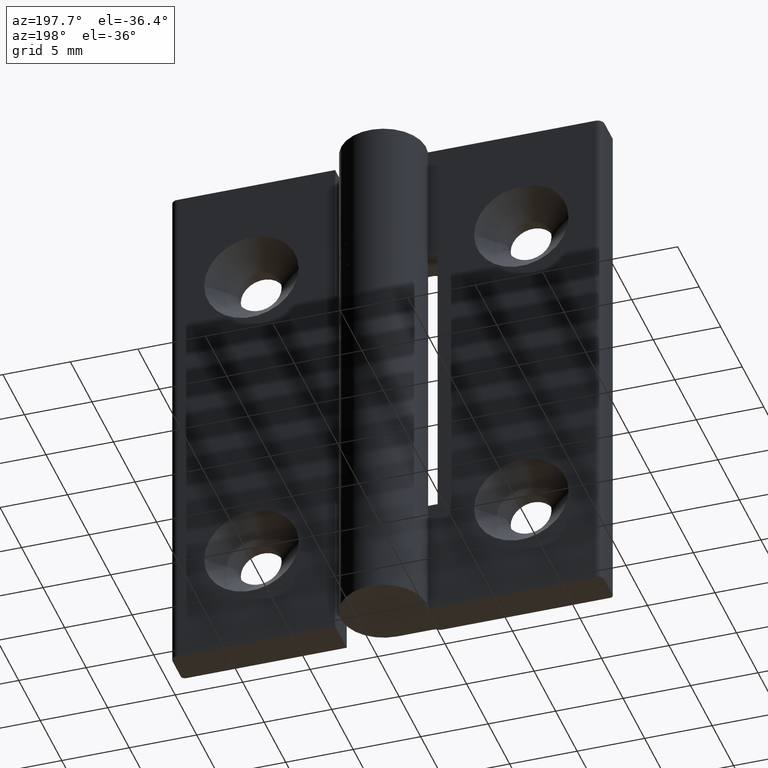
[diagram: clean part render]
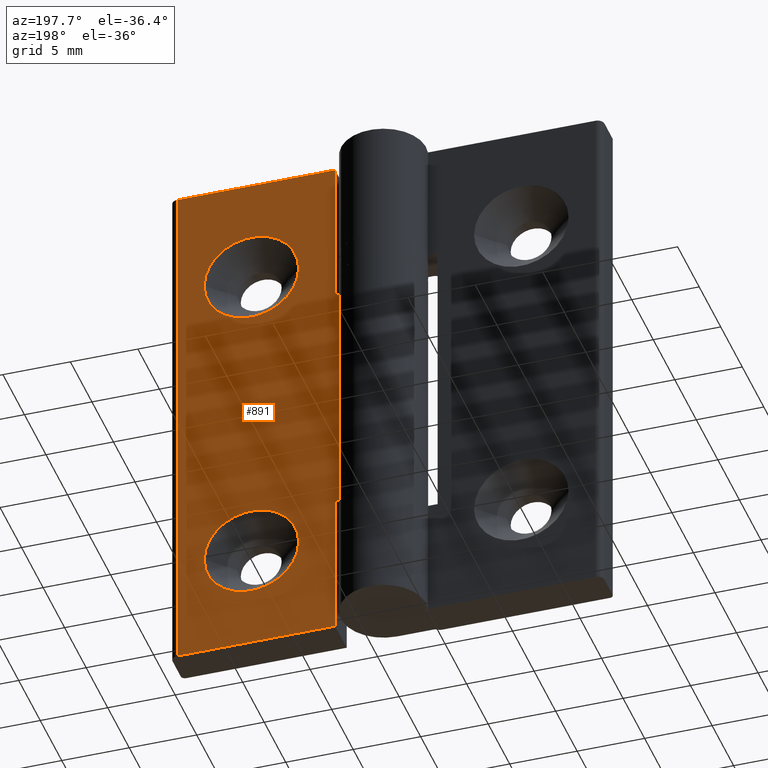
[diagram: same view with one face highlighted and labeled with its STEP entity id]
A machine part, auxiliary view. The second image highlights one B-rep face of the part: STEP entity #891.
In plain terms, the highlighted planar face has unit normal (0, 1, 0).
Its self-contained STEP definition (entity closure, byte-faithful):
#97=FACE_BOUND('',#273,.T.);
#98=FACE_BOUND('',#274,.T.);
#150=CIRCLE('',#997,3.5);
#151=CIRCLE('',#998,3.5);
#198=FACE_OUTER_BOUND('',#272,.T.);
#272=EDGE_LOOP('',(#799,#800,#801,#802,#803,#804,#805,#806));
#273=EDGE_LOOP('',(#807));
#274=EDGE_LOOP('',(#808));
#318=LINE('',#1446,#379);
#322=LINE('',#1462,#383);
#325=LINE('',#1469,#386);
#329=LINE('',#1477,#390);
#340=LINE('',#1513,#401);
#344=LINE('',#1524,#405);
#345=LINE('',#1527,#406);
#346=LINE('',#1529,#407);
#379=VECTOR('',#1181,0.717792998515512);
#383=VECTOR('',#1195,11.);
#386=VECTOR('',#1200,11.);
#390=VECTOR('',#1206,0.717792998515512);
#401=VECTOR('',#1243,11.7);
#405=VECTOR('',#1255,11.7);
#406=VECTOR('',#1260,40.);
#407=VECTOR('',#1263,18.);
#456=VERTEX_POINT('',#1444);
#457=VERTEX_POINT('',#1445);
#464=VERTEX_POINT('',#1461);
#466=VERTEX_POINT('',#1467);
#467=VERTEX_POINT('',#1468);
#470=VERTEX_POINT('',#1476);
#482=VERTEX_POINT('',#1511);
#485=VERTEX_POINT('',#1523);
#486=VERTEX_POINT('',#1530);
#487=VERTEX_POINT('',#1532);
#554=EDGE_CURVE('',#456,#457,#318,.T.);
#562=EDGE_CURVE('',#464,#456,#322,.T.);
#565=EDGE_CURVE('',#466,#467,#325,.T.);
#569=EDGE_CURVE('',#470,#466,#329,.T.);
#588=EDGE_CURVE('',#467,#482,#340,.T.);
#593=EDGE_CURVE('',#464,#485,#344,.T.);
#595=EDGE_CURVE('',#485,#482,#345,.T.);
#596=EDGE_CURVE('',#470,#457,#346,.T.);
#597=EDGE_CURVE('',#486,#486,#150,.T.);
#598=EDGE_CURVE('',#487,#487,#151,.T.);
#799=ORIENTED_EDGE('',*,*,#554,.T.);
#800=ORIENTED_EDGE('',*,*,#596,.F.);
#801=ORIENTED_EDGE('',*,*,#569,.T.);
#802=ORIENTED_EDGE('',*,*,#565,.T.);
#803=ORIENTED_EDGE('',*,*,#588,.T.);
#804=ORIENTED_EDGE('',*,*,#595,.F.);
#805=ORIENTED_EDGE('',*,*,#593,.F.);
#806=ORIENTED_EDGE('',*,*,#562,.T.);
#807=ORIENTED_EDGE('',*,*,#597,.T.);
#808=ORIENTED_EDGE('',*,*,#598,.T.);
#846=PLANE('',#996);
#891=ADVANCED_FACE('',(#198,#97,#98),#846,.T.);
#996=AXIS2_PLACEMENT_3D('',#1528,#1261,#1262);
#997=AXIS2_PLACEMENT_3D('',#1531,#1264,#1265);
#998=AXIS2_PLACEMENT_3D('',#1533,#1266,#1267);
#1181=DIRECTION('',(-1.,0.,0.));
#1195=DIRECTION('',(5.04646829375071E-17,0.,1.));
#1200=DIRECTION('',(1.76626390281275E-16,0.,1.));
#1206=DIRECTION('',(1.,0.,-5.39388216233736E-16));
#1243=DIRECTION('',(1.,0.,0.));
#1255=DIRECTION('',(1.,0.,0.));
#1260=DIRECTION('',(0.,0.,1.));
#1261=DIRECTION('center_axis',(0.,1.,0.));
#1262=DIRECTION('ref_axis',(1.,0.,0.));
#1263=DIRECTION('',(0.,0.,-1.));
#1264=DIRECTION('center_axis',(0.,-1.,0.));
#1265=DIRECTION('ref_axis',(1.,0.,0.));
#1266=DIRECTION('center_axis',(0.,-1.,0.));
#1267=DIRECTION('ref_axis',(1.,0.,0.));
#1444=CARTESIAN_POINT('',(3.8,-0.649999999999999,-29.));
#1445=CARTESIAN_POINT('',(3.08220700148449,-0.649999999999999,-29.));
#1446=CARTESIAN_POINT('',(-2.7235997448302,-0.649999999999999,-29.));
#1461=CARTESIAN_POINT('',(3.8,-0.649999999999999,-40.));
#1462=CARTESIAN_POINT('',(3.8,-0.649999999999999,-14.5));
#1467=CARTESIAN_POINT('',(3.8,-0.649999999999999,-11.));
#1468=CARTESIAN_POINT('',(3.8,-0.649999999999999,0.));
#1469=CARTESIAN_POINT('',(3.8,-0.649999999999999,-3.35590141534423E-16));
#1476=CARTESIAN_POINT('',(3.08220700148449,-0.649999999999999,-11.));
#1477=CARTESIAN_POINT('',(1.9,-0.649999999999999,-11.));
#1511=CARTESIAN_POINT('',(15.5,-0.649999999999999,0.));
#1513=CARTESIAN_POINT('',(-5.55111512312578E-16,-0.649999999999999,0.));
#1523=CARTESIAN_POINT('',(15.5,-0.649999999999999,-40.));
#1524=CARTESIAN_POINT('',(-5.55111512312578E-16,-0.649999999999999,-40.));
#1527=CARTESIAN_POINT('',(15.5,-0.649999999999999,0.));
#1528=CARTESIAN_POINT('Origin',(-5.55111512312578E-16,-0.649999999999999,
0.));
#1529=CARTESIAN_POINT('',(3.08220700148449,-0.649999999999999,0.));
#1530=CARTESIAN_POINT('',(13.5,-0.649999999999999,-32.));
#1531=CARTESIAN_POINT('Origin',(10.,-0.649999999999999,-32.));
#1532=CARTESIAN_POINT('',(13.5,-0.649999999999999,-8.));
#1533=CARTESIAN_POINT('Origin',(10.,-0.649999999999999,-8.));